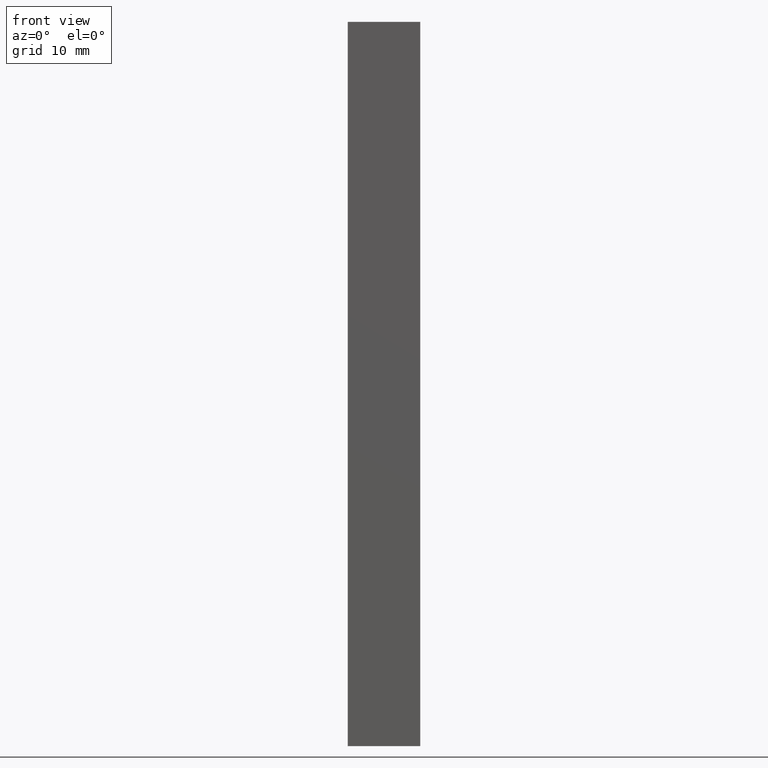
[diagram: clean part render]
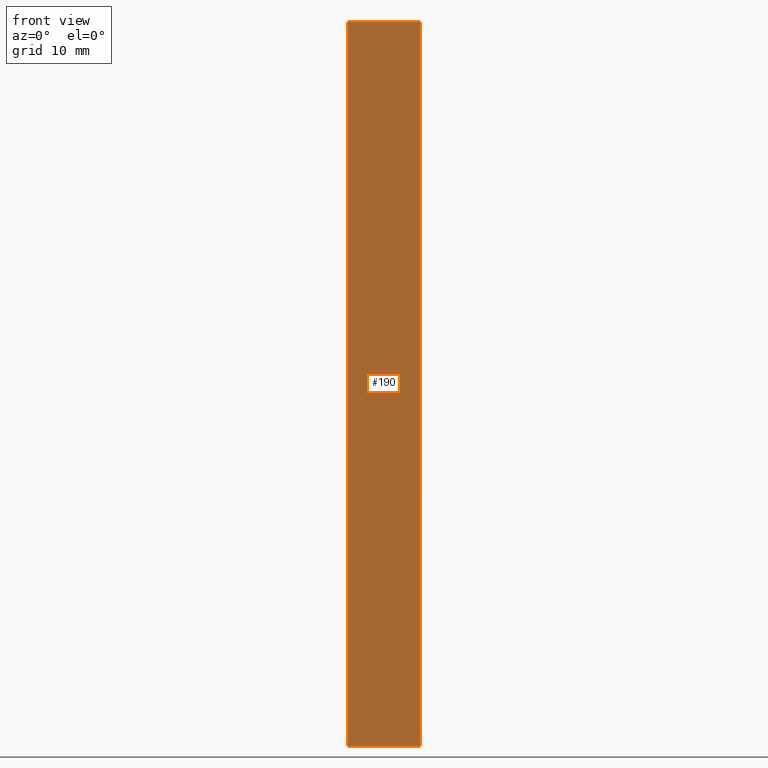
[diagram: same view with one face highlighted and labeled with its STEP entity id]
A machine part, front view. The second image highlights one B-rep face of the part: STEP entity #190.
In plain terms, the highlighted planar face has unit normal (0, -1, 0).
Its self-contained STEP definition (entity closure, byte-faithful):
#22=FACE_OUTER_BOUND('',#32,.T.);
#32=EDGE_LOOP('',(#147,#148,#149,#150));
#54=LINE('',#286,#78);
#55=LINE('',#289,#79);
#56=LINE('',#291,#80);
#57=LINE('',#292,#81);
#78=VECTOR('',#234,100.);
#79=VECTOR('',#237,10.);
#80=VECTOR('',#238,10.);
#81=VECTOR('',#239,100.);
#95=VERTEX_POINT('',#279);
#98=VERTEX_POINT('',#284);
#99=VERTEX_POINT('',#288);
#100=VERTEX_POINT('',#290);
#118=EDGE_CURVE('',#95,#98,#54,.T.);
#119=EDGE_CURVE('',#99,#95,#55,.T.);
#120=EDGE_CURVE('',#100,#98,#56,.T.);
#121=EDGE_CURVE('',#99,#100,#57,.T.);
#147=ORIENTED_EDGE('',*,*,#119,.T.);
#148=ORIENTED_EDGE('',*,*,#118,.T.);
#149=ORIENTED_EDGE('',*,*,#120,.F.);
#150=ORIENTED_EDGE('',*,*,#121,.F.);
#180=PLANE('',#202);
#190=ADVANCED_FACE('',(#22),#180,.T.);
#202=AXIS2_PLACEMENT_3D('',#287,#235,#236);
#234=DIRECTION('',(0.,0.,-1.));
#235=DIRECTION('center_axis',(0.,-1.,0.));
#236=DIRECTION('ref_axis',(-1.,0.,0.));
#237=DIRECTION('',(-1.,0.,0.));
#238=DIRECTION('',(-1.,0.,0.));
#239=DIRECTION('',(0.,0.,-1.));
#279=CARTESIAN_POINT('',(28.8330423541557,24.6378745652133,0.));
#284=CARTESIAN_POINT('',(28.8330423541557,24.6378745652133,-100.));
#286=CARTESIAN_POINT('',(28.8330423541557,24.6378745652133,0.));
#287=CARTESIAN_POINT('Origin',(38.8330423541557,24.6378745652133,0.));
#288=CARTESIAN_POINT('',(38.8330423541557,24.6378745652133,0.));
#289=CARTESIAN_POINT('',(38.8330423541557,24.6378745652133,0.));
#290=CARTESIAN_POINT('',(38.8330423541557,24.6378745652133,-100.));
#291=CARTESIAN_POINT('',(38.8330423541557,24.6378745652133,-100.));
#292=CARTESIAN_POINT('',(38.8330423541557,24.6378745652133,0.));